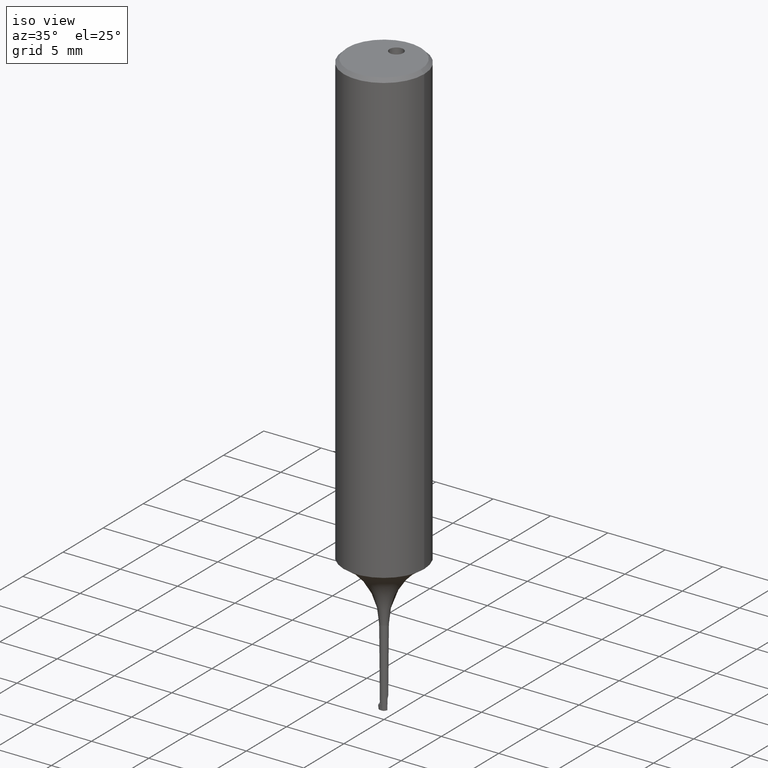
[diagram: clean part render]
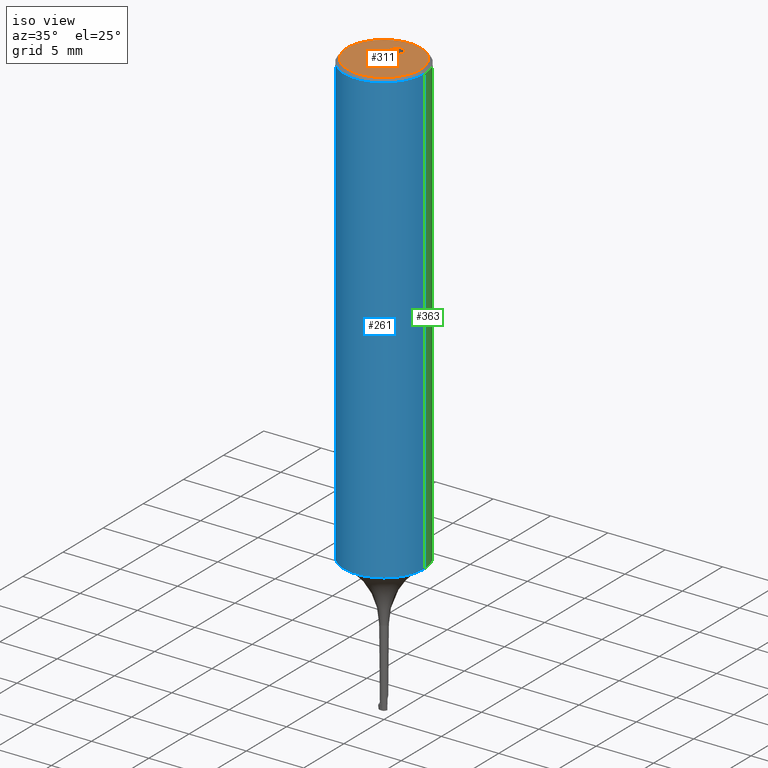
[diagram: same view with three faces highlighted in distinct colors, each labeled with its STEP entity id]
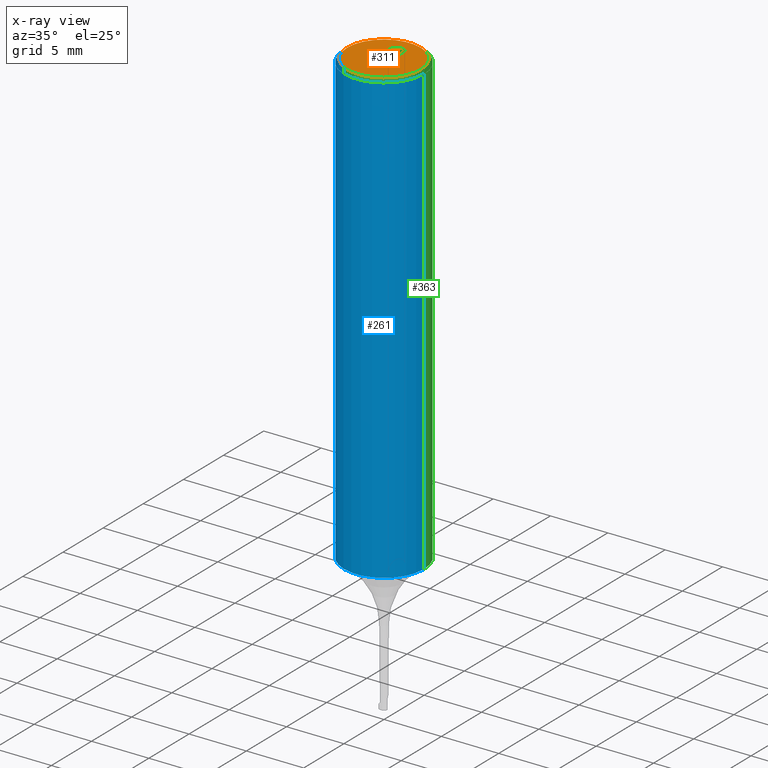
[diagram: x-ray of the same camera — body ghosted, the three highlighted faces saturated]
A machine part, iso view with three faces highlighted in distinct colors.
The next image is the same camera in x-ray (body ghosted, the three faces saturated) — at least one of them is partly hidden behind the body in this view.
Their STEP definitions:

[orange] entity #311 — the highlighted planar face has unit normal (0, 0, -1).
#221=EDGE_CURVE('NONE',#315,#351,#488,.F.);
#239=VERTEX_POINT('NONE',#509);
#255=EDGE_CURVE('NONE',#351,#315,#527,.T.);
#289=EDGE_CURVE('NONE',#239,#293,#568,.T.);
#293=VERTEX_POINT('NONE',#572);
#307=EDGE_CURVE('NONE',#293,#239,#586,.F.);
#311=ADVANCED_FACE('NONE',(#590,#591),#592,.F.);
#315=VERTEX_POINT('NONE',#597);
#351=VERTEX_POINT('NONE',#637);
#488=CIRCLE('',#867,3.19999999999999);
#509=CARTESIAN_POINT('',(-0.599999999999995,1.55,0.0));
#527=CIRCLE('',#916,3.19999999999999);
#568=CIRCLE('',#997,0.6);
#572=CARTESIAN_POINT('',(0.600000000000006,1.55,0.0));
#586=CIRCLE('',#1049,0.6);
#590=FACE_OUTER_BOUND('',#1063,.T.);
#591=FACE_BOUND('',#1064,.T.);
#592=PLANE('',#1065);
#597=CARTESIAN_POINT('',(-3.19999999999999,1.117274675555E-014,0.0));
#637=CARTESIAN_POINT('',(3.19999999999999,-1.12862261311859E-014,0.0));
#867=AXIS2_PLACEMENT_3D('',#1383,#1384,#1385);
#916=AXIS2_PLACEMENT_3D('',#1435,#1436,#1437);
#997=AXIS2_PLACEMENT_3D('',#1506,#1507,#1508);
#1049=AXIS2_PLACEMENT_3D('',#1515,#1516,#1517);
#1063=EDGE_LOOP('',(#1519,#1520));
#1064=EDGE_LOOP('',(#1521,#1522));
#1065=AXIS2_PLACEMENT_3D('',#1523,#1524,#1525);
#1383=CARTESIAN_POINT('',(0.0,0.0,0.0));
#1384=DIRECTION('',(0.0,0.0,-1.0));
#1385=DIRECTION('',(-1.0,3.49148336110938E-015,0.0));
#1435=CARTESIAN_POINT('',(0.0,0.0,0.0));
#1436=DIRECTION('',(0.0,0.0,1.0));
#1437=DIRECTION('',(-1.0,3.49148336110938E-015,0.0));
#1506=CARTESIAN_POINT('',(5.41179920971954E-015,1.55,0.0));
#1507=DIRECTION('',(-0.0,0.0,1.0));
#1508=DIRECTION('',(1.0,-3.61400724161835E-015,0.0));
#1515=CARTESIAN_POINT('',(5.41179920971954E-015,1.55,0.0));
#1516=DIRECTION('',(0.0,0.0,-1.0));
#1517=DIRECTION('',(1.0,-3.61400724161835E-015,0.0));
#1519=ORIENTED_EDGE('',*,*,#221,.T.);
#1520=ORIENTED_EDGE('',*,*,#255,.T.);
#1521=ORIENTED_EDGE('',*,*,#307,.F.);
#1522=ORIENTED_EDGE('',*,*,#289,.F.);
#1523=CARTESIAN_POINT('',(0.0,0.0,0.0));
#1524=DIRECTION('',(0.0,0.0,-1.0));
#1525=DIRECTION('',(-1.0,0.0,0.0));

[blue] entity #261 — the highlighted cylindrical surface (partial cylindrical patch) has radius 3.5 mm, axis along (-0, -0, 1).
#149=EDGE_CURVE('NONE',#195,#373,#411,.T.);
#195=VERTEX_POINT('NONE',#461);
#223=EDGE_CURVE('NONE',#319,#373,#490,.T.);
#227=EDGE_CURVE('NONE',#195,#297,#495,.T.);
#261=ADVANCED_FACE('NONE',(#534),#535,.T.);
#297=VERTEX_POINT('NONE',#576);
#319=VERTEX_POINT('NONE',#601);
#373=VERTEX_POINT('NONE',#660);
#381=EDGE_CURVE('NONE',#297,#319,#669,.T.);
#411=LINE('',#691,#692);
#461=CARTESIAN_POINT('',(-3.5,1.26488039877207E-014,-39.3));
#490=CIRCLE('',#870,3.5);
#495=CIRCLE('',#876,3.5);
#534=FACE_OUTER_BOUND('',#933,.T.);
#535=CYLINDRICAL_SURFACE('',#934,3.5);
#576=CARTESIAN_POINT('',(3.5,-1.22201917638828E-014,-39.3));
#601=CARTESIAN_POINT('',(3.5,-1.22201917638828E-014,-0.300000000000013));
#660=CARTESIAN_POINT('',(-3.5,1.26488039877207E-014,-0.300000000000013));
#669=LINE('',#1289,#1290);
#691=CARTESIAN_POINT('',(-3.5,1.26488039877207E-014,4.84780321269557));
#692=VECTOR('',#1312,1000.0);
#870=AXIS2_PLACEMENT_3D('',#1386,#1387,#1388);
#876=AXIS2_PLACEMENT_3D('',#1397,#1398,#1399);
#933=EDGE_LOOP('',(#1450,#1451,#1452,#1453));
#934=AXIS2_PLACEMENT_3D('',#1454,#1455,#1456);
#1289=CARTESIAN_POINT('',(3.5,-1.22201917638828E-014,4.84780321269557));
#1290=VECTOR('',#1605,1000.0);
#1312=DIRECTION('',(0.0,0.0,1.0));
#1386=CARTESIAN_POINT('',(0.0,0.0,-0.300000000000013));
#1387=DIRECTION('',(0.0,0.0,-1.0));
#1388=DIRECTION('',(1.0,-3.49148336110938E-015,0.0));
#1397=CARTESIAN_POINT('',(0.0,0.0,-39.3));
#1398=DIRECTION('',(0.0,-0.0,1.0));
#1399=DIRECTION('',(1.0,-3.49148336110938E-015,-0.0));
#1450=ORIENTED_EDGE('',*,*,#149,.F.);
#1451=ORIENTED_EDGE('',*,*,#227,.T.);
#1452=ORIENTED_EDGE('',*,*,#381,.T.);
#1453=ORIENTED_EDGE('',*,*,#223,.T.);
#1454=CARTESIAN_POINT('',(0.0,0.0,4.84780321269557));
#1455=DIRECTION('',(-0.0,-0.0,1.0));
#1456=DIRECTION('',(1.0,-3.49148336110938E-015,0.0));
#1605=DIRECTION('',(0.0,0.0,1.0));

[green] entity #363 — the highlighted cylindrical surface (partial cylindrical patch) has radius 3.5 mm, axis along (-0, -0, 1).
#149=EDGE_CURVE('NONE',#195,#373,#411,.T.);
#165=EDGE_CURVE('NONE',#373,#319,#427,.F.);
#171=EDGE_CURVE('NONE',#297,#179,#433,.F.);
#179=VERTEX_POINT('NONE',#442);
#195=VERTEX_POINT('NONE',#461);
#197=VERTEX_POINT('NONE',#463);
#217=VERTEX_POINT('NONE',#484);
#263=EDGE_CURVE('NONE',#197,#335,#537,.F.);
#269=EDGE_CURVE('NONE',#217,#335,#543,.F.);
#297=VERTEX_POINT('NONE',#576);
#301=EDGE_CURVE('NONE',#217,#195,#580,.F.);
#319=VERTEX_POINT('NONE',#601);
#321=EDGE_CURVE('NONE',#197,#179,#603,.F.);
#335=VERTEX_POINT('NONE',#619);
#363=ADVANCED_FACE('NONE',(#649),#650,.T.);
#373=VERTEX_POINT('NONE',#660);
#381=EDGE_CURVE('NONE',#297,#319,#669,.T.);
#411=LINE('',#691,#692);
#427=CIRCLE('',#730,3.5);
#433=CIRCLE('',#737,3.5);
#442=CARTESIAN_POINT('',(1.95959179422655,2.89999999999999,-39.3));
#461=CARTESIAN_POINT('',(-3.5,1.26488039877207E-014,-39.3));
#463=CARTESIAN_POINT('',(1.95959179422655,2.89999999999999,-37.0));
#484=CARTESIAN_POINT('',(-1.95959179422653,2.90000000000001,-39.3));
#537=CIRCLE('',#937,3.5);
#543=LINE('',#944,#945);
#576=CARTESIAN_POINT('',(3.5,-1.22201917638828E-014,-39.3));
#580=CIRCLE('',#1041,3.5);
#601=CARTESIAN_POINT('',(3.5,-1.22201917638828E-014,-0.300000000000013));
#603=LINE('',#1155,#1156);
#619=CARTESIAN_POINT('',(-1.95959179422653,2.90000000000001,-37.0));
#649=FACE_OUTER_BOUND('',#1256,.T.);
#650=CYLINDRICAL_SURFACE('',#1257,3.5);
#660=CARTESIAN_POINT('',(-3.5,1.26488039877207E-014,-0.300000000000013));
#669=LINE('',#1289,#1290);
#691=CARTESIAN_POINT('',(-3.5,1.26488039877207E-014,4.84780321269557));
#692=VECTOR('',#1312,1000.0);
#730=AXIS2_PLACEMENT_3D('',#1319,#1320,#1321);
#737=AXIS2_PLACEMENT_3D('',#1322,#1323,#1324);
#937=AXIS2_PLACEMENT_3D('',#1457,#1458,#1459);
#944=CARTESIAN_POINT('',(-1.95959179422653,2.90000000000001,4.84780321269557));
#945=VECTOR('',#1460,1.0);
#1041=AXIS2_PLACEMENT_3D('',#1509,#1510,#1511);
#1155=CARTESIAN_POINT('',(1.95959179422655,2.89999999999999,4.84780321269557));
#1156=VECTOR('',#1533,1.0);
#1256=EDGE_LOOP('',(#1585,#1586,#1587,#1588,#1589,#1590,#1591,#1592));
#1257=AXIS2_PLACEMENT_3D('',#1593,#1594,#1595);
#1289=CARTESIAN_POINT('',(3.5,-1.22201917638828E-014,4.84780321269557));
#1290=VECTOR('',#1605,1000.0);
#1312=DIRECTION('',(0.0,0.0,1.0));
#1319=CARTESIAN_POINT('',(0.0,0.0,-0.300000000000013));
#1320=DIRECTION('',(0.0,-0.0,1.0));
#1321=DIRECTION('',(1.0,-3.49148336110938E-015,-0.0));
#1322=CARTESIAN_POINT('',(0.0,0.0,-39.3));
#1323=DIRECTION('',(0.0,0.0,-1.0));
#1324=DIRECTION('',(1.0,-3.49148336110938E-015,0.0));
#1457=CARTESIAN_POINT('',(0.0,0.0,-37.0));
#1458=DIRECTION('',(0.0,0.0,-1.0));
#1459=DIRECTION('',(1.0,-3.49148336110938E-015,0.0));
#1460=DIRECTION('',(0.0,0.0,-1.0));
#1509=CARTESIAN_POINT('',(0.0,0.0,-39.3));
#1510=DIRECTION('',(0.0,0.0,-1.0));
#1511=DIRECTION('',(1.0,-3.49148336110938E-015,0.0));
#1533=DIRECTION('',(0.0,-0.0,1.0));
#1585=ORIENTED_EDGE('',*,*,#301,.T.);
#1586=ORIENTED_EDGE('',*,*,#149,.T.);
#1587=ORIENTED_EDGE('',*,*,#165,.T.);
#1588=ORIENTED_EDGE('',*,*,#381,.F.);
#1589=ORIENTED_EDGE('',*,*,#171,.T.);
#1590=ORIENTED_EDGE('',*,*,#321,.F.);
#1591=ORIENTED_EDGE('',*,*,#263,.T.);
#1592=ORIENTED_EDGE('',*,*,#269,.F.);
#1593=CARTESIAN_POINT('',(0.0,0.0,4.84780321269557));
#1594=DIRECTION('',(-0.0,-0.0,1.0));
#1595=DIRECTION('',(1.0,-3.49148336110938E-015,0.0));
#1605=DIRECTION('',(0.0,0.0,1.0));